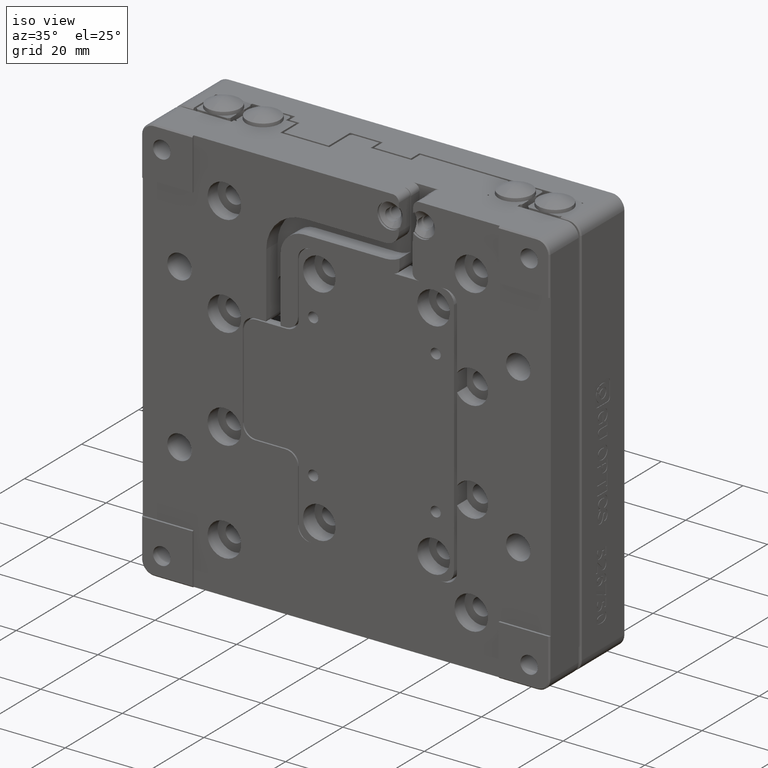
[diagram: clean part render]
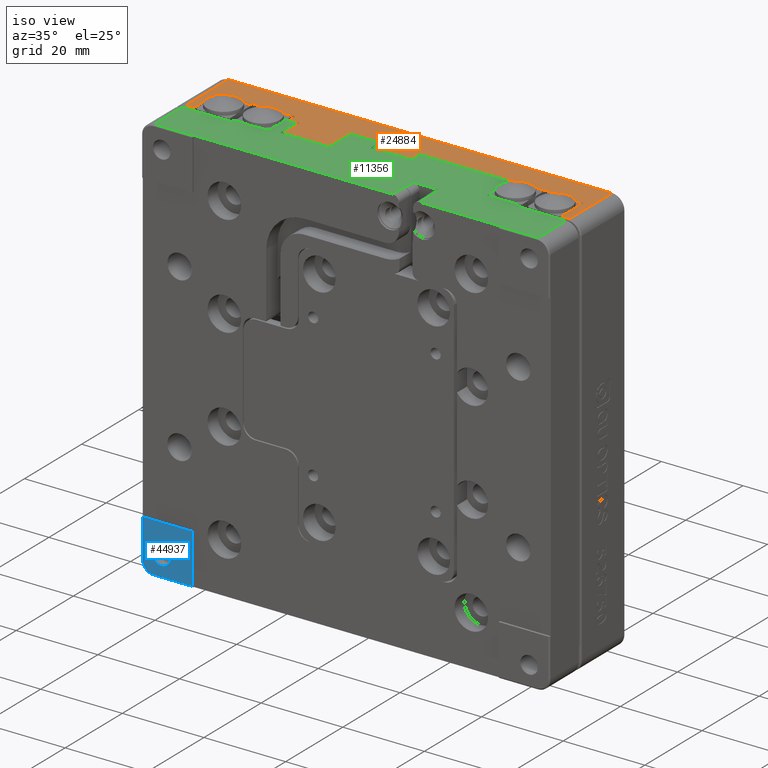
[diagram: same view with three faces highlighted in distinct colors, each labeled with its STEP entity id]
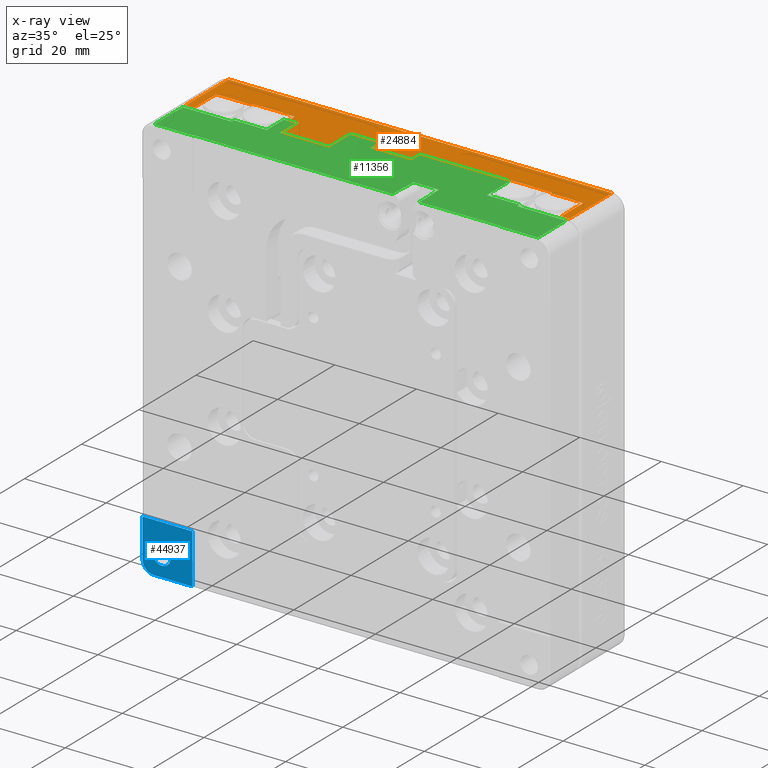
[diagram: x-ray of the same camera — body ghosted, the three highlighted faces saturated]
A machine part, iso view with three faces highlighted in distinct colors.
The next image is the same camera in x-ray (body ghosted, the three faces saturated) — at least one of them is partly hidden behind the body in this view.
Their STEP definitions:

[orange] entity #24884 — the highlighted planar face has unit normal (0, 0, -1).
#21 = EDGE_CURVE ( 'NONE', #41973, #6763, #14478, .T. ) ;
#1104 = VECTOR ( 'NONE', #9554, 1000.000000000000000 ) ;
#2211 = CARTESIAN_POINT ( 'NONE',  ( -26.00000000000000400, 8.249999999999998200, 50.00000000000000000 ) ) ;
#2368 = VECTOR ( 'NONE', #47038, 1000.000000000000000 ) ;
#2709 = EDGE_CURVE ( 'NONE', #3889, #42621, #4008, .T. ) ;
#2779 = EDGE_LOOP ( 'NONE', ( #47043, #3453, #15563, #17596, #35051, #40010, #50641, #11193, #48526, #22409, #39622, #38890, #26853, #7026, #33501, #30886, #23662, #6353, #12034, #21953, #6511, #53862 ) ) ;
#3005 = CARTESIAN_POINT ( 'NONE',  ( -12.50000000000000400, 8.249999999999998200, 50.00000000000000000 ) ) ;
#3222 = EDGE_CURVE ( 'NONE', #39526, #34266, #26660, .T. ) ;
#3453 = ORIENTED_EDGE ( 'NONE', *, *, #48138, .F. ) ;
#3682 = VERTEX_POINT ( 'NONE', #8224 ) ;
#3889 = VERTEX_POINT ( 'NONE', #54286 ) ;
#4008 = LINE ( 'NONE', #40900, #28039 ) ;
#4354 = CARTESIAN_POINT ( 'NONE',  ( -36.50000000000000700, 8.500000000000000000, 50.00000000000000700 ) ) ;
#5271 = CARTESIAN_POINT ( 'NONE',  ( 0.0000000000000000000, 8.500000000000000000, 50.00000000000000000 ) ) ;
#5319 = EDGE_CURVE ( 'NONE', #42621, #3682, #9113, .T. ) ;
#5554 = LINE ( 'NONE', #43356, #38199 ) ;
#5677 = VECTOR ( 'NONE', #52497, 1000.000000000000000 ) ;
#5835 = EDGE_CURVE ( 'NONE', #34266, #26705, #29798, .T. ) ;
#6031 = LINE ( 'NONE', #47899, #28723 ) ;
#6353 = ORIENTED_EDGE ( 'NONE', *, *, #52555, .F. ) ;
#6511 = ORIENTED_EDGE ( 'NONE', *, *, #24999, .F. ) ;
#6708 = EDGE_CURVE ( 'NONE', #17486, #39526, #47670, .T. ) ;
#6760 = CARTESIAN_POINT ( 'NONE',  ( 37.00000000000000000, 9.000000000000001800, 50.00000000000000000 ) ) ;
#6763 = VERTEX_POINT ( 'NONE', #30486 ) ;
#6963 = EDGE_CURVE ( 'NONE', #53427, #17486, #14342, .T. ) ;
#7026 = ORIENTED_EDGE ( 'NONE', *, *, #21, .F. ) ;
#7611 = CARTESIAN_POINT ( 'NONE',  ( 0.0000000000000000000, 0.7999999956783000500, 50.00000000000000000 ) ) ;
#7929 = VERTEX_POINT ( 'NONE', #44696 ) ;
#8068 = CARTESIAN_POINT ( 'NONE',  ( 0.0000000000000000000, 6.000000000000000000, 50.00000000000000000 ) ) ;
#8224 = CARTESIAN_POINT ( 'NONE',  ( -12.50000000000000000, 1.500000000000000000, 50.00000000000000000 ) ) ;
#8502 = CARTESIAN_POINT ( 'NONE',  ( 0.0000000000000000000, 15.70000000486000300, 50.00000000000000000 ) ) ;
#8934 = CARTESIAN_POINT ( 'NONE',  ( 37.00000000000000000, 8.749999999999998200, 50.00000000000000000 ) ) ;
#9113 = LINE ( 'NONE', #3005, #30434 ) ;
#9407 = VECTOR ( 'NONE', #52199, 1000.000000000000000 ) ;
#9548 = DIRECTION ( 'NONE',  ( -1.000000000000000000, 0.0000000000000000000, 0.0000000000000000000 ) ) ;
#9554 = DIRECTION ( 'NONE',  ( -1.000000000000000000, 0.0000000000000000000, 0.0000000000000000000 ) ) ;
#10002 = CARTESIAN_POINT ( 'NONE',  ( 0.0000000000000000000, 9.000000000000001800, 50.00000000000000000 ) ) ;
#10147 = EDGE_CURVE ( 'NONE', #3682, #41973, #54753, .T. ) ;
#10742 = VERTEX_POINT ( 'NONE', #13954 ) ;
#10893 = CARTESIAN_POINT ( 'NONE',  ( 4.499999999999999100, 9.000000000000001800, 50.00000000000000000 ) ) ;
#11193 = ORIENTED_EDGE ( 'NONE', *, *, #14778, .F. ) ;
#12034 = ORIENTED_EDGE ( 'NONE', *, *, #36727, .F. ) ;
#12196 = VERTEX_POINT ( 'NONE', #51866 ) ;
#12353 = DIRECTION ( 'NONE',  ( -1.000000000000000000, 0.0000000000000000000, 0.0000000000000000000 ) ) ;
#13151 = CARTESIAN_POINT ( 'NONE',  ( -36.50000000000000000, 8.749999999999998200, 50.00000000000000000 ) ) ;
#13198 = DIRECTION ( 'NONE',  ( -1.000000000000000000, 0.0000000000000000000, 0.0000000000000000000 ) ) ;
#13205 = EDGE_CURVE ( 'NONE', #12196, #10742, #40543, .T. ) ;
#13954 = CARTESIAN_POINT ( 'NONE',  ( 37.00000000000000000, 8.500000000000000000, 50.00000000000000000 ) ) ;
#14342 = LINE ( 'NONE', #36581, #25704 ) ;
#14478 = LINE ( 'NONE', #24933, #24514 ) ;
#14545 = CARTESIAN_POINT ( 'NONE',  ( 0.0000000000000000000, 0.8000000000000000400, 50.00000000000000000 ) ) ;
#14778 = EDGE_CURVE ( 'NONE', #39390, #16737, #26416, .T. ) ;
#15063 = DIRECTION ( 'NONE',  ( 0.0000000000000000000, 1.000000000000000000, 0.0000000000000000000 ) ) ;
#15269 = VECTOR ( 'NONE', #38822, 1000.000000000000000 ) ;
#15563 = ORIENTED_EDGE ( 'NONE', *, *, #5835, .F. ) ;
#16057 = CARTESIAN_POINT ( 'NONE',  ( 44.99999999999999300, 8.249999999999998200, 50.00000000000000000 ) ) ;
#16069 = DIRECTION ( 'NONE',  ( -1.000000000000000000, 0.0000000000000000000, 0.0000000000000000000 ) ) ;
#16737 = VERTEX_POINT ( 'NONE', #39913 ) ;
#16996 = LINE ( 'NONE', #10002, #5677 ) ;
#17116 = DIRECTION ( 'NONE',  ( -1.000000000000000000, 0.0000000000000000000, 0.0000000000000000000 ) ) ;
#17126 = VECTOR ( 'NONE', #37397, 1000.000000000000000 ) ;
#17486 = VERTEX_POINT ( 'NONE', #38736 ) ;
#17596 = ORIENTED_EDGE ( 'NONE', *, *, #3222, .F. ) ;
#17849 = CARTESIAN_POINT ( 'NONE',  ( -23.49999999999999600, 1.500000000000000000, 50.00000000000000000 ) ) ;
#18149 = CARTESIAN_POINT ( 'NONE',  ( 4.500000000000000900, 6.000000000000000000, 50.00000000000000000 ) ) ;
#18546 = VECTOR ( 'NONE', #18829, 1000.000000000000000 ) ;
#18676 = CARTESIAN_POINT ( 'NONE',  ( -26.00000000000000400, 7.000000000000000000, 50.00000000000000000 ) ) ;
#18829 = DIRECTION ( 'NONE',  ( -1.000000000000000000, 0.0000000000000000000, 0.0000000000000000000 ) ) ;
#20298 = VERTEX_POINT ( 'NONE', #4354 ) ;
#20378 = DIRECTION ( 'NONE',  ( 0.0000000000000000000, 1.000000000000000000, 0.0000000000000000000 ) ) ;
#20428 = EDGE_CURVE ( 'NONE', #7929, #29927, #6031, .T. ) ;
#20519 = VERTEX_POINT ( 'NONE', #18676 ) ;
#21330 = EDGE_CURVE ( 'NONE', #20298, #29927, #25306, .T. ) ;
#21592 = CARTESIAN_POINT ( 'NONE',  ( 0.0000000000000000000, 8.500000000000000000, 50.00000000000000000 ) ) ;
#21953 = ORIENTED_EDGE ( 'NONE', *, *, #38975, .F. ) ;
#22163 = EDGE_CURVE ( 'NONE', #6763, #20519, #37191, .T. ) ;
#22409 = ORIENTED_EDGE ( 'NONE', *, *, #21330, .T. ) ;
#22417 = CARTESIAN_POINT ( 'NONE',  ( 0.0000000000000000000, 1.500000000000000000, 50.00000000000000000 ) ) ;
#23407 = CARTESIAN_POINT ( 'NONE',  ( -45.00000000000000700, 8.249999999999998200, 50.00000000000000000 ) ) ;
#23662 = ORIENTED_EDGE ( 'NONE', *, *, #2709, .F. ) ;
#23714 = CARTESIAN_POINT ( 'NONE',  ( -12.50000000000000200, 9.000000000000001800, 50.00000000000000000 ) ) ;
#23988 = DIRECTION ( 'NONE',  ( -1.000000000000000000, 0.0000000000000000000, 0.0000000000000000000 ) ) ;
#24514 = VECTOR ( 'NONE', #46119, 1000.000000000000000 ) ;
#24884 = ADVANCED_FACE ( 'NONE', ( #32335 ), #34051, .F. ) ;
#24933 = CARTESIAN_POINT ( 'NONE',  ( -23.50000000000000000, 8.249999999999998200, 50.00000000000000000 ) ) ;
#24999 = EDGE_CURVE ( 'NONE', #53249, #28573, #16996, .T. ) ;
#25218 = CARTESIAN_POINT ( 'NONE',  ( -46.99999999298375300, 0.7999999989207889900, 49.99999999891878100 ) ) ;
#25306 = LINE ( 'NONE', #13151, #46588 ) ;
#25704 = VECTOR ( 'NONE', #28216, 1000.000000000000000 ) ;
#26416 = LINE ( 'NONE', #23407, #30391 ) ;
#26660 = LINE ( 'NONE', #51495, #15269 ) ;
#26705 = VERTEX_POINT ( 'NONE', #45158 ) ;
#26853 = ORIENTED_EDGE ( 'NONE', *, *, #22163, .F. ) ;
#28039 = VECTOR ( 'NONE', #23988, 1000.000000000000000 ) ;
#28216 = DIRECTION ( 'NONE',  ( 0.0000000000000000000, 1.000000000000000000, 0.0000000000000000000 ) ) ;
#28556 = DIRECTION ( 'NONE',  ( -0.0000000000000000000, -1.000000000000000000, -0.0000000000000000000 ) ) ;
#28573 = VERTEX_POINT ( 'NONE', #10893 ) ;
#28596 = CARTESIAN_POINT ( 'NONE',  ( 0.0000000000000000000, 7.000000000000000000, 50.00000000000000000 ) ) ;
#28723 = VECTOR ( 'NONE', #9548, 1000.000000000000000 ) ;
#29462 = EDGE_CURVE ( 'NONE', #20519, #7929, #54993, .T. ) ;
#29798 = LINE ( 'NONE', #7611, #17126 ) ;
#29927 = VERTEX_POINT ( 'NONE', #50023 ) ;
#30071 = DIRECTION ( 'NONE',  ( -0.0000000000000000000, -1.000000000000000000, -0.0000000000000000000 ) ) ;
#30391 = VECTOR ( 'NONE', #48875, 1000.000000000000000 ) ;
#30434 = VECTOR ( 'NONE', #28556, 1000.000000000000000 ) ;
#30486 = CARTESIAN_POINT ( 'NONE',  ( -23.49999999999999600, 6.999999999999999100, 50.00000000000000000 ) ) ;
#30505 = CARTESIAN_POINT ( 'NONE',  ( -4.499999999999999100, 6.000000000000000000, 50.00000000000000000 ) ) ;
#30886 = ORIENTED_EDGE ( 'NONE', *, *, #5319, .F. ) ;
#31223 = LINE ( 'NONE', #14545, #18546 ) ;
#31376 = VECTOR ( 'NONE', #34456, 1000.000000000000000 ) ;
#32036 = VERTEX_POINT ( 'NONE', #30505 ) ;
#32335 = FACE_OUTER_BOUND ( 'NONE', #2779, .T. ) ;
#32705 = LINE ( 'NONE', #8934, #31376 ) ;
#33501 = ORIENTED_EDGE ( 'NONE', *, *, #10147, .F. ) ;
#34051 = PLANE ( 'NONE',  #35618 ) ;
#34192 = DIRECTION ( 'NONE',  ( 0.0000000000000000000, 1.000000000000000000, 0.0000000000000000000 ) ) ;
#34266 = VERTEX_POINT ( 'NONE', #35213 ) ;
#34456 = DIRECTION ( 'NONE',  ( 0.0000000000000000000, -1.000000000000000000, 0.0000000000000000000 ) ) ;
#34982 = DIRECTION ( 'NONE',  ( 0.0000000000000000000, 1.000000000000000000, 0.0000000000000000000 ) ) ;
#35051 = ORIENTED_EDGE ( 'NONE', *, *, #6708, .F. ) ;
#35213 = CARTESIAN_POINT ( 'NONE',  ( 47.00000000000000000, 0.7999999997318707500, 49.99999999972791200 ) ) ;
#35618 = AXIS2_PLACEMENT_3D ( 'NONE', #38338, #42613, #17116 ) ;
#36581 = CARTESIAN_POINT ( 'NONE',  ( -46.99999998349000700, 8.249999999999998200, 50.00000000000000000 ) ) ;
#36727 = EDGE_CURVE ( 'NONE', #51454, #32036, #39756, .T. ) ;
#37191 = LINE ( 'NONE', #28596, #47175 ) ;
#37397 = DIRECTION ( 'NONE',  ( -1.000000000000000000, 0.0000000000000000000, 0.0000000000000000000 ) ) ;
#38161 = VECTOR ( 'NONE', #30071, 1000.000000000000000 ) ;
#38199 = VECTOR ( 'NONE', #34982, 1000.000000000000000 ) ;
#38338 = CARTESIAN_POINT ( 'NONE',  ( 48.88000000000000300, 0.5020000000000001100, 50.00000000000000000 ) ) ;
#38736 = CARTESIAN_POINT ( 'NONE',  ( -46.99999999718875200, 15.70000000045562400, 49.99999999954437900 ) ) ;
#38822 = DIRECTION ( 'NONE',  ( -0.0000000000000000000, -1.000000000000000000, -0.0000000000000000000 ) ) ;
#38890 = ORIENTED_EDGE ( 'NONE', *, *, #29462, .F. ) ;
#38925 = CARTESIAN_POINT ( 'NONE',  ( -45.00000000000000000, 8.500000000000000000, 50.00000000000000000 ) ) ;
#38975 = EDGE_CURVE ( 'NONE', #28573, #51454, #49494, .T. ) ;
#39390 = VERTEX_POINT ( 'NONE', #38925 ) ;
#39526 = VERTEX_POINT ( 'NONE', #50134 ) ;
#39622 = ORIENTED_EDGE ( 'NONE', *, *, #20428, .F. ) ;
#39756 = LINE ( 'NONE', #8068, #49736 ) ;
#39913 = CARTESIAN_POINT ( 'NONE',  ( -45.00000000000000700, 0.7999999989197650300, 49.99999999891981200 ) ) ;
#40010 = ORIENTED_EDGE ( 'NONE', *, *, #6963, .F. ) ;
#40543 = LINE ( 'NONE', #21592, #50519 ) ;
#40900 = CARTESIAN_POINT ( 'NONE',  ( 0.0000000000000000000, 9.000000000000001800, 50.00000000000000000 ) ) ;
#40977 = EDGE_CURVE ( 'NONE', #20298, #39390, #46422, .T. ) ;
#41973 = VERTEX_POINT ( 'NONE', #17849 ) ;
#42613 = DIRECTION ( 'NONE',  ( 0.0000000000000000000, 0.0000000000000000000, -1.000000000000000000 ) ) ;
#42621 = VERTEX_POINT ( 'NONE', #23714 ) ;
#43356 = CARTESIAN_POINT ( 'NONE',  ( -4.499999999999997300, 8.249999999999998200, 50.00000000000000000 ) ) ;
#43635 = VECTOR ( 'NONE', #15063, 1000.000000000000000 ) ;
#44696 = CARTESIAN_POINT ( 'NONE',  ( -26.00000000000000400, 9.000000000000001800, 50.00000000000000000 ) ) ;
#45158 = CARTESIAN_POINT ( 'NONE',  ( 45.00000000000000000, 0.7999999978391269000, 50.00000000000000000 ) ) ;
#46119 = DIRECTION ( 'NONE',  ( 0.0000000000000000000, 1.000000000000000000, 0.0000000000000000000 ) ) ;
#46422 = LINE ( 'NONE', #5271, #1104 ) ;
#46588 = VECTOR ( 'NONE', #34192, 1000.000000000000000 ) ;
#46632 = CARTESIAN_POINT ( 'NONE',  ( 4.499999999999997300, 8.249999999999998200, 50.00000000000000000 ) ) ;
#47038 = DIRECTION ( 'NONE',  ( 1.000000000000000000, -0.0000000000000000000, -0.0000000000000000000 ) ) ;
#47043 = ORIENTED_EDGE ( 'NONE', *, *, #13205, .F. ) ;
#47175 = VECTOR ( 'NONE', #16069, 1000.000000000000000 ) ;
#47670 = LINE ( 'NONE', #8502, #2368 ) ;
#47899 = CARTESIAN_POINT ( 'NONE',  ( 0.0000000000000000000, 9.000000000000001800, 50.00000000000000000 ) ) ;
#48138 = EDGE_CURVE ( 'NONE', #26705, #12196, #54583, .T. ) ;
#48464 = EDGE_CURVE ( 'NONE', #16737, #53427, #31223, .T. ) ;
#48526 = ORIENTED_EDGE ( 'NONE', *, *, #40977, .F. ) ;
#48875 = DIRECTION ( 'NONE',  ( -0.0000000000000000000, -1.000000000000000000, -0.0000000000000000000 ) ) ;
#49494 = LINE ( 'NONE', #46632, #38161 ) ;
#49736 = VECTOR ( 'NONE', #12353, 1000.000000000000000 ) ;
#50023 = CARTESIAN_POINT ( 'NONE',  ( -36.49999999999999300, 9.000000000000001800, 50.00000000000000700 ) ) ;
#50134 = CARTESIAN_POINT ( 'NONE',  ( 46.99999998789874700, 15.70000000182249900, 49.99999999878500000 ) ) ;
#50519 = VECTOR ( 'NONE', #13198, 1000.000000000000000 ) ;
#50641 = ORIENTED_EDGE ( 'NONE', *, *, #48464, .F. ) ;
#51454 = VERTEX_POINT ( 'NONE', #18149 ) ;
#51495 = CARTESIAN_POINT ( 'NONE',  ( 46.99999997153000200, 8.249999999999998200, 50.00000000000000000 ) ) ;
#51866 = CARTESIAN_POINT ( 'NONE',  ( 44.99999999999999300, 8.500000000000000000, 50.00000000000000000 ) ) ;
#52199 = DIRECTION ( 'NONE',  ( -1.000000000000000000, 0.0000000000000000000, 0.0000000000000000000 ) ) ;
#52497 = DIRECTION ( 'NONE',  ( -1.000000000000000000, 0.0000000000000000000, 0.0000000000000000000 ) ) ;
#52555 = EDGE_CURVE ( 'NONE', #32036, #3889, #5554, .T. ) ;
#53249 = VERTEX_POINT ( 'NONE', #6760 ) ;
#53258 = VECTOR ( 'NONE', #20378, 1000.000000000000000 ) ;
#53427 = VERTEX_POINT ( 'NONE', #25218 ) ;
#53862 = ORIENTED_EDGE ( 'NONE', *, *, #54205, .T. ) ;
#54205 = EDGE_CURVE ( 'NONE', #53249, #10742, #32705, .T. ) ;
#54286 = CARTESIAN_POINT ( 'NONE',  ( -4.500000000000000900, 9.000000000000001800, 50.00000000000000000 ) ) ;
#54583 = LINE ( 'NONE', #16057, #53258 ) ;
#54753 = LINE ( 'NONE', #22417, #9407 ) ;
#54993 = LINE ( 'NONE', #2211, #43635 ) ;

[blue] entity #44937 — the highlighted planar face has unit normal (0, -1, 0).
#363 = CARTESIAN_POINT ( 'NONE',  ( -46.99999999295749800, -10.50000000146250300, -49.69999999853750000 ) ) ;
#430 = B_SPLINE_CURVE_WITH_KNOTS ( 'NONE', 3,
 ( #37549, #3471, #46114, #20629, #50421, #24929, #54717, #29208, #3674, #33452 ),
 .UNSPECIFIED., .F., .F.,
 ( 4, 2, 2, 2, 4 ),
 ( 0.0000000000000000000, 0.2500000000000000000, 0.5000000000000000000, 0.7500000000000000000, 1.000000000000000000 ),
 .UNSPECIFIED. ) ;
#498 = EDGE_CURVE ( 'NONE', #36043, #38061, #51082, .T. ) ;
#1688 = B_SPLINE_CURVE_WITH_KNOTS ( 'NONE', 3,
 ( #24132, #11415, #15721, #45507, #20021, #49807, #24323, #54098, #28601, #3053 ),
 .UNSPECIFIED., .F., .F.,
 ( 4, 2, 2, 2, 4 ),
 ( 0.0000000000000000000, 0.1250000000000000000, 0.2500000000000000000, 0.3750000000000000000, 0.5000000000000000000 ),
 .UNSPECIFIED. ) ;
#2581 = EDGE_CURVE ( 'NONE', #36297, #38061, #41989, .T. ) ;
#2650 = CARTESIAN_POINT ( 'NONE',  ( -43.67872455205393600, -10.50000000000000200, -46.71928371115609500 ) ) ;
#3053 = CARTESIAN_POINT ( 'NONE',  ( -45.00000000000000700, -10.50000000000000200, -47.14999999999999900 ) ) ;
#3130 = CARTESIAN_POINT ( 'NONE',  ( -49.69999999854999800, -10.50000000000000400, -47.00000002039301700 ) ) ;
#3322 = CARTESIAN_POINT ( 'NONE',  ( -45.00000000000000000, -10.50000000000000200, -42.85000000000000100 ) ) ;
#3471 = CARTESIAN_POINT ( 'NONE',  ( -47.35342917148959400, -10.50000000000000400, -49.69999999999999600 ) ) ;
#3674 = CARTESIAN_POINT ( 'NONE',  ( -49.69999999679674800, -10.50000000000000500, -47.35342919596060100 ) ) ;
#3847 = CARTESIAN_POINT ( 'NONE',  ( -45.00000000000000000, -10.50000000000000200, -42.85000000000000100 ) ) ;
#4031 = CARTESIAN_POINT ( 'NONE',  ( -45.00000000000000000, -10.50000000000000200, -42.85000000000000100 ) ) ;
#4157 = EDGE_CURVE ( 'NONE', #30820, #36297, #30536, .T. ) ;
#4870 = B_SPLINE_CURVE_WITH_KNOTS ( 'NONE', 3,
 ( #19608, #45124, #53718, #28192, #2650, #32455, #6940, #36723, #11211, #41019 ),
 .UNSPECIFIED., .F., .F.,
 ( 4, 2, 2, 2, 4 ),
 ( 0.5000000000000000000, 0.6250000000000000000, 0.7500000000000000000, 0.8750000000000000000, 1.000000000000000000 ),
 .UNSPECIFIED. ) ;
#5056 = EDGE_CURVE ( 'NONE', #43322, #50538, #45065, .T. ) ;
#5512 = VERTEX_POINT ( 'NONE', #363 ) ;
#5713 = ORIENTED_EDGE ( 'NONE', *, *, #42077, .T. ) ;
#6499 = VERTEX_POINT ( 'NONE', #53438 ) ;
#6940 = CARTESIAN_POINT ( 'NONE',  ( -43.12135926503835000, -10.50000000000000200, -46.08278080779742000 ) ) ;
#8118 = CARTESIAN_POINT ( 'NONE',  ( -46.08278080779741300, -10.50000000000000000, -43.12135926503832200 ) ) ;
#9358 = DIRECTION ( 'NONE',  ( -0.0000000000000000000, -0.0000000000000000000, 1.000000000000000000 ) ) ;
#11211 = CARTESIAN_POINT ( 'NONE',  ( -42.85000000000000100, -10.50000000000000200, -45.28143434188408600 ) ) ;
#11415 = CARTESIAN_POINT ( 'NONE',  ( -47.14999999999999900, -10.50000000000000000, -45.28143434188407900 ) ) ;
#11691 = CARTESIAN_POINT ( 'NONE',  ( -42.85000000000000100, -10.50000000000000200, -44.99999999999998600 ) ) ;
#11806 = DIRECTION ( 'NONE',  ( 1.000000000000000000, 0.0000000000000000000, 0.0000000000000000000 ) ) ;
#12407 = CARTESIAN_POINT ( 'NONE',  ( -46.71928371115608100, -10.50000000000000400, -43.67872455205392900 ) ) ;
#14102 = CARTESIAN_POINT ( 'NONE',  ( -42.25000000000000700, -10.50000000585000000, -49.69999999415000500 ) ) ;
#15721 = CARTESIAN_POINT ( 'NONE',  ( -47.09404125483688100, -10.50000000000000400, -45.56275795137245400 ) ) ;
#15972 = CARTESIAN_POINT ( 'NONE',  ( -42.90595874516313300, -10.50000000000000400, -44.43724204862755300 ) ) ;
#16509 = CARTESIAN_POINT ( 'NONE',  ( -45.56275795137245400, -10.50000000000000400, -42.90595874516312600 ) ) ;
#16681 = CARTESIAN_POINT ( 'NONE',  ( -47.09404125483687400, -10.50000000000000400, -44.43724204862753200 ) ) ;
#18407 = DIRECTION ( 'NONE',  ( 1.000000000000000000, 0.0000000000000000000, 0.0000000000000000000 ) ) ;
#18883 = EDGE_LOOP ( 'NONE', ( #52044, #52543, #27895, #28325 ) ) ;
#19203 = VECTOR ( 'NONE', #9358, 1000.000000000000000 ) ;
#19354 = VECTOR ( 'NONE', #39423, 1000.000000000000000 ) ;
#19608 = CARTESIAN_POINT ( 'NONE',  ( -45.00000000000000700, -10.50000000000000200, -47.14999999999999900 ) ) ;
#20021 = CARTESIAN_POINT ( 'NONE',  ( -46.71928371115609500, -10.50000000000000200, -46.32127544794607100 ) ) ;
#20277 = CARTESIAN_POINT ( 'NONE',  ( -43.28071628884390500, -10.50000000000000200, -43.67872455205393600 ) ) ;
#20629 = CARTESIAN_POINT ( 'NONE',  ( -48.35977123977180300, -10.50000000000000000, -49.35922325241789100 ) ) ;
#20990 = CARTESIAN_POINT ( 'NONE',  ( -47.14999999999999900, -10.50000000000000200, -45.00000000000000000 ) ) ;
#21368 = FACE_BOUND ( 'NONE', #18883, .T. ) ;
#21744 = EDGE_CURVE ( 'NONE', #5512, #36043, #430, .T. ) ;
#24132 = CARTESIAN_POINT ( 'NONE',  ( -47.14999999999999900, -10.50000000000000200, -45.00000000000000000 ) ) ;
#24323 = CARTESIAN_POINT ( 'NONE',  ( -46.08278080779743400, -10.50000000000000200, -46.87864073496165700 ) ) ;
#24594 = CARTESIAN_POINT ( 'NONE',  ( -43.91721919220255900, -10.50000000000000200, -43.12135926503835000 ) ) ;
#24929 = CARTESIAN_POINT ( 'NONE',  ( -49.15910046551383100, -10.50000000000000700, -48.65927615515855100 ) ) ;
#25645 = EDGE_CURVE ( 'NONE', #40671, #6499, #4870, .T. ) ;
#26349 = CARTESIAN_POINT ( 'NONE',  ( -37.50000000000000000, -10.50000000000000000, -43.75000000000000000 ) ) ;
#27895 = ORIENTED_EDGE ( 'NONE', *, *, #40149, .F. ) ;
#27959 = ORIENTED_EDGE ( 'NONE', *, *, #498, .F. ) ;
#28192 = CARTESIAN_POINT ( 'NONE',  ( -43.91721919220256600, -10.50000000000000000, -46.87864073496165700 ) ) ;
#28325 = ORIENTED_EDGE ( 'NONE', *, *, #25645, .F. ) ;
#28337 = VECTOR ( 'NONE', #18407, 1000.000000000000000 ) ;
#28601 = CARTESIAN_POINT ( 'NONE',  ( -45.28143434188409300, -10.50000000000000200, -47.15000000000000600 ) ) ;
#28787 = PLANE ( 'NONE',  #31447 ) ;
#28860 = CARTESIAN_POINT ( 'NONE',  ( -44.71856565811591400, -10.50000000000000200, -42.85000000000000100 ) ) ;
#29208 = CARTESIAN_POINT ( 'NONE',  ( -49.62972622142015000, -10.50000000000000700, -47.70671930752963900 ) ) ;
#29374 = CARTESIAN_POINT ( 'NONE',  ( -45.28143434188409300, -10.50000000000000000, -42.85000000000000100 ) ) ;
#30536 = LINE ( 'NONE', #26349, #19203 ) ;
#30820 = VERTEX_POINT ( 'NONE', #39797 ) ;
#31044 = EDGE_CURVE ( 'NONE', #50538, #40671, #1688, .T. ) ;
#31447 = AXIS2_PLACEMENT_3D ( 'NONE', #33051, #37315, #11806 ) ;
#32455 = CARTESIAN_POINT ( 'NONE',  ( -43.28071628884392700, -10.50000000000000400, -46.32127544794607100 ) ) ;
#33051 = CARTESIAN_POINT ( 'NONE',  ( -51.68799999999998800, -10.50000000000000000, -51.68799999999998800 ) ) ;
#33452 = CARTESIAN_POINT ( 'NONE',  ( -49.69999999854999800, -10.50000000000000400, -47.00000002039301700 ) ) ;
#34084 = CARTESIAN_POINT ( 'NONE',  ( -49.69999999710000800, -10.50000000000000000, -37.50000000000000700 ) ) ;
#36043 = VERTEX_POINT ( 'NONE', #3130 ) ;
#36297 = VERTEX_POINT ( 'NONE', #38674 ) ;
#36723 = CARTESIAN_POINT ( 'NONE',  ( -42.90595874516311900, -10.50000000000000400, -45.56275795137245400 ) ) ;
#37216 = CARTESIAN_POINT ( 'NONE',  ( -42.84999999999999400, -10.50000000000000000, -44.71856565811592800 ) ) ;
#37315 = DIRECTION ( 'NONE',  ( 0.0000000000000000000, -1.000000000000000000, 0.0000000000000000000 ) ) ;
#37543 = ORIENTED_EDGE ( 'NONE', *, *, #4157, .T. ) ;
#37549 = CARTESIAN_POINT ( 'NONE',  ( -46.99999999295749800, -10.50000000146250300, -49.69999999853750000 ) ) ;
#37914 = CARTESIAN_POINT ( 'NONE',  ( -46.32127544794606400, -10.50000000000000200, -43.28071628884390500 ) ) ;
#38061 = VERTEX_POINT ( 'NONE', #34084 ) ;
#38674 = CARTESIAN_POINT ( 'NONE',  ( -37.50000000000000000, -10.50000000000000000, -37.49999999999999300 ) ) ;
#39423 = DIRECTION ( 'NONE',  ( -1.000000000000000000, -0.0000000000000000000, -0.0000000000000000000 ) ) ;
#39768 = VECTOR ( 'NONE', #45273, 1000.000000000000000 ) ;
#39797 = CARTESIAN_POINT ( 'NONE',  ( -37.50000000000000000, -10.50000000390000000, -49.69999999415000500 ) ) ;
#40149 = EDGE_CURVE ( 'NONE', #6499, #43322, #43336, .T. ) ;
#40671 = VERTEX_POINT ( 'NONE', #41244 ) ;
#40974 = ORIENTED_EDGE ( 'NONE', *, *, #21744, .F. ) ;
#41019 = CARTESIAN_POINT ( 'NONE',  ( -42.85000000000000100, -10.50000000000000200, -44.99999999999998600 ) ) ;
#41244 = CARTESIAN_POINT ( 'NONE',  ( -45.00000000000000700, -10.50000000000000200, -47.14999999999999900 ) ) ;
#41989 = LINE ( 'NONE', #52087, #19354 ) ;
#42077 = EDGE_CURVE ( 'NONE', #5512, #30820, #49629, .T. ) ;
#42198 = CARTESIAN_POINT ( 'NONE',  ( -46.87864073496165700, -10.50000000000000200, -43.91721919220255900 ) ) ;
#43322 = VERTEX_POINT ( 'NONE', #4031 ) ;
#43336 = B_SPLINE_CURVE_WITH_KNOTS ( 'NONE', 3,
 ( #11691, #37216, #15972, #45787, #20277, #50074, #24594, #54377, #28860, #3322 ),
 .UNSPECIFIED., .F., .F.,
 ( 4, 2, 2, 2, 4 ),
 ( 0.0000000000000000000, 0.1250000000000000000, 0.2500000000000000000, 0.3750000000000000000, 0.5000000000000000000 ),
 .UNSPECIFIED. ) ;
#44937 = ADVANCED_FACE ( 'NONE', ( #21368, #54039 ), #28787, .T. ) ;
#45039 = ORIENTED_EDGE ( 'NONE', *, *, #2581, .T. ) ;
#45065 = B_SPLINE_CURVE_WITH_KNOTS ( 'NONE', 3,
 ( #3847, #29374, #16509, #8118, #37914, #12407, #42198, #16681, #46488, #20990 ),
 .UNSPECIFIED., .F., .F.,
 ( 4, 2, 2, 2, 4 ),
 ( 0.5000000000000000000, 0.6250000000000000000, 0.7500000000000000000, 0.8750000000000000000, 1.000000000000000000 ),
 .UNSPECIFIED. ) ;
#45097 = CARTESIAN_POINT ( 'NONE',  ( -49.69999999420000600, -10.50000000000000000, 0.0000000000000000000 ) ) ;
#45124 = CARTESIAN_POINT ( 'NONE',  ( -44.71856565811592800, -10.50000000000000000, -47.14999999999998400 ) ) ;
#45273 = DIRECTION ( 'NONE',  ( 0.0000000000000000000, 0.0000000000000000000, 1.000000000000000000 ) ) ;
#45507 = CARTESIAN_POINT ( 'NONE',  ( -46.87864073496165700, -10.50000000000000000, -46.08278080779742000 ) ) ;
#45787 = CARTESIAN_POINT ( 'NONE',  ( -43.12135926503832900, -10.50000000000000000, -43.91721919220256600 ) ) ;
#46114 = CARTESIAN_POINT ( 'NONE',  ( -47.70671928369555600, -10.50000000000000400, -49.62972622782537300 ) ) ;
#46488 = CARTESIAN_POINT ( 'NONE',  ( -47.15000000000000600, -10.50000000000000200, -44.71856565811591400 ) ) ;
#49629 = LINE ( 'NONE', #14102, #28337 ) ;
#49807 = CARTESIAN_POINT ( 'NONE',  ( -46.32127544794606400, -10.50000000000000400, -46.71928371115608100 ) ) ;
#50074 = CARTESIAN_POINT ( 'NONE',  ( -43.67872455205392900, -10.50000000000000400, -43.28071628884392700 ) ) ;
#50421 = CARTESIAN_POINT ( 'NONE',  ( -48.65927613558991300, -10.50000000000000500, -49.15910048055241800 ) ) ;
#50538 = VERTEX_POINT ( 'NONE', #51807 ) ;
#51082 = LINE ( 'NONE', #45097, #39768 ) ;
#51807 = CARTESIAN_POINT ( 'NONE',  ( -47.14999999999999900, -10.50000000000000200, -45.00000000000000000 ) ) ;
#52044 = ORIENTED_EDGE ( 'NONE', *, *, #31044, .F. ) ;
#52087 = CARTESIAN_POINT ( 'NONE',  ( -43.75000000000000000, -10.50000000000000000, -37.50000000000000000 ) ) ;
#52543 = ORIENTED_EDGE ( 'NONE', *, *, #5056, .F. ) ;
#53438 = CARTESIAN_POINT ( 'NONE',  ( -42.85000000000000100, -10.50000000000000200, -44.99999999999998600 ) ) ;
#53718 = CARTESIAN_POINT ( 'NONE',  ( -44.43724204862755300, -10.50000000000000400, -47.09404125483687400 ) ) ;
#54039 = FACE_OUTER_BOUND ( 'NONE', #54773, .T. ) ;
#54098 = CARTESIAN_POINT ( 'NONE',  ( -45.56275795137245400, -10.50000000000000400, -47.09404125483687400 ) ) ;
#54377 = CARTESIAN_POINT ( 'NONE',  ( -44.43724204862753200, -10.50000000000000400, -42.90595874516311900 ) ) ;
#54717 = CARTESIAN_POINT ( 'NONE',  ( -49.35922324009384000, -10.50000000000000500, -48.35977126115423600 ) ) ;
#54773 = EDGE_LOOP ( 'NONE', ( #45039, #27959, #40974, #5713, #37543 ) ) ;

[green] entity #11356 — the highlighted planar face has unit normal (0, 0, 1).
#127 = LINE ( 'NONE', #51236, #32771 ) ;
#553 = CARTESIAN_POINT ( 'NONE',  ( 27.00000000000017100, 8.000000000000167000, 49.99999999999999300 ) ) ;
#899 = EDGE_CURVE ( 'NONE', #16049, #13241, #26441, .T. ) ;
#1280 = CARTESIAN_POINT ( 'NONE',  ( 11.39603971668496200, -5.999999999999999100, 49.99635791898223400 ) ) ;
#1509 = VERTEX_POINT ( 'NONE', #44422 ) ;
#1536 = CARTESIAN_POINT ( 'NONE',  ( -37.50000000000000700, -10.00000000000000000, 50.00000000000000700 ) ) ;
#2053 = DIRECTION ( 'NONE',  ( 1.000000000000000000, 0.0000000000000000000, 0.0000000000000000000 ) ) ;
#2209 = ORIENTED_EDGE ( 'NONE', *, *, #40506, .F. ) ;
#2395 = VECTOR ( 'NONE', #18429, 1000.000000000000000 ) ;
#2491 = CARTESIAN_POINT ( 'NONE',  ( 26.99999999999999600, 4.249999999999998200, 49.99999999999998600 ) ) ;
#2565 = VECTOR ( 'NONE', #6236, 1000.000000000000000 ) ;
#3041 = DIRECTION ( 'NONE',  ( -1.000000000000000000, -0.0000000000000000000, -0.0000000000000000000 ) ) ;
#3086 = ORIENTED_EDGE ( 'NONE', *, *, #32607, .F. ) ;
#3102 = CARTESIAN_POINT ( 'NONE',  ( 46.99999998299000500, -0.2999999989170589700, 49.99999999891731100 ) ) ;
#3139 = VERTEX_POINT ( 'NONE', #12390 ) ;
#3312 = VERTEX_POINT ( 'NONE', #5470 ) ;
#3701 = B_SPLINE_CURVE_WITH_KNOTS ( 'NONE', 3,
 ( #33415, #54856, #3816, #33611 ),
 .UNSPECIFIED., .F., .F.,
 ( 4, 4 ),
 ( 0.0000000000000000000, 1.000000000000000000 ),
 .UNSPECIFIED. ) ;
#3768 = LINE ( 'NONE', #20179, #47735 ) ;
#3816 = CARTESIAN_POINT ( 'NONE',  ( 17.60123104058920200, -4.000000000000000900, 50.00000000000000000 ) ) ;
#4245 = DIRECTION ( 'NONE',  ( 0.0000000000000000000, 1.000000000000000000, 0.0000000000000000000 ) ) ;
#4501 = CARTESIAN_POINT ( 'NONE',  ( 35.00000000000002100, 0.4999999999999995600, 50.00000000000000000 ) ) ;
#4509 = ORIENTED_EDGE ( 'NONE', *, *, #19283, .F. ) ;
#4809 = CARTESIAN_POINT ( 'NONE',  ( -46.99999997253624400, -10.20000000071166300, 49.99999999989833600 ) ) ;
#4885 = VERTEX_POINT ( 'NONE', #53437 ) ;
#4902 = CARTESIAN_POINT ( 'NONE',  ( 37.50000000000001400, -0.8499999999999974200, 50.00000000000000000 ) ) ;
#5309 = EDGE_CURVE ( 'NONE', #43689, #3312, #43080, .T. ) ;
#5470 = CARTESIAN_POINT ( 'NONE',  ( -12.00000000000022400, 8.000000000000225600, 50.00000000000000700 ) ) ;
#5572 = CARTESIAN_POINT ( 'NONE',  ( 11.34733556511116200, -5.999999999999998200, 49.99762957515039800 ) ) ;
#5787 = VECTOR ( 'NONE', #38653, 1000.000000000000000 ) ;
#5808 = ORIENTED_EDGE ( 'NONE', *, *, #50190, .T. ) ;
#6236 = DIRECTION ( 'NONE',  ( 1.000000000000000000, 0.0000000000000000000, 0.0000000000000000000 ) ) ;
#6336 = CARTESIAN_POINT ( 'NONE',  ( -4.999999999999996400, 5.500000000000000000, 50.00000000000000000 ) ) ;
#6864 = VERTEX_POINT ( 'NONE', #40138 ) ;
#6968 = DIRECTION ( 'NONE',  ( 1.000000000000000000, 0.0000000000000000000, 0.0000000000000000000 ) ) ;
#6978 = DIRECTION ( 'NONE',  ( 1.000000000000000000, 0.0000000000000000000, 0.0000000000000000000 ) ) ;
#7118 = DIRECTION ( 'NONE',  ( -0.7071067811884557100, -0.7071067811846394300, 0.0000000000000000000 ) ) ;
#7306 = CARTESIAN_POINT ( 'NONE',  ( 35.00000000000002100, -0.3000000000000004900, 50.00000000000000700 ) ) ;
#7696 = DIRECTION ( 'NONE',  ( -0.0000000000000000000, -1.000000000000000000, -0.0000000000000000000 ) ) ;
#7923 = VERTEX_POINT ( 'NONE', #40443 ) ;
#7992 = ORIENTED_EDGE ( 'NONE', *, *, #50685, .F. ) ;
#8056 = CARTESIAN_POINT ( 'NONE',  ( -31.00000000000000000, 0.5000000000000000000, 49.99999999999998600 ) ) ;
#8329 = DIRECTION ( 'NONE',  ( -0.0000000000000000000, -1.000000000000000000, -0.0000000000000000000 ) ) ;
#8589 = DIRECTION ( 'NONE',  ( 0.0000000000000000000, 1.000000000000000000, 0.0000000000000000000 ) ) ;
#9094 = CARTESIAN_POINT ( 'NONE',  ( -46.99999997183000000, -0.8499999999999974200, 50.00000000000000000 ) ) ;
#9104 = CARTESIAN_POINT ( 'NONE',  ( -35.00000000000000000, -0.8499999999999974200, 50.00000000000000000 ) ) ;
#9449 = VERTEX_POINT ( 'NONE', #1536 ) ;
#9516 = ORIENTED_EDGE ( 'NONE', *, *, #21959, .F. ) ;
#9702 = VECTOR ( 'NONE', #6978, 1000.000000000000000 ) ;
#9712 = LINE ( 'NONE', #4902, #19707 ) ;
#9864 = CARTESIAN_POINT ( 'NONE',  ( 11.25000000000000200, -5.999999999999999100, 50.00000000000000700 ) ) ;
#9901 = LINE ( 'NONE', #49533, #19909 ) ;
#10061 = VERTEX_POINT ( 'NONE', #51465 ) ;
#10124 = VERTEX_POINT ( 'NONE', #22211 ) ;
#10454 = VECTOR ( 'NONE', #3041, 1000.000000000000000 ) ;
#10671 = VECTOR ( 'NONE', #22769, 1000.000000000000000 ) ;
#10857 = CARTESIAN_POINT ( 'NONE',  ( 0.0000000000000000000, -10.20000000433000100, 49.99999999999999300 ) ) ;
#11041 = DIRECTION ( 'NONE',  ( 0.0000000000000000000, 1.000000000000000000, 0.0000000000000000000 ) ) ;
#11046 = CARTESIAN_POINT ( 'NONE',  ( 17.70133218105692000, -5.999999999999998200, 50.00000000000000000 ) ) ;
#11058 = PLANE ( 'NONE',  #42092 ) ;
#11201 = DIRECTION ( 'NONE',  ( -0.0000000000000000000, -1.000000000000000000, -0.0000000000000000000 ) ) ;
#11356 = ADVANCED_FACE ( 'NONE', ( #27995 ), #11058, .T. ) ;
#11495 = EDGE_CURVE ( 'NONE', #52353, #10061, #22031, .T. ) ;
#11626 = CARTESIAN_POINT ( 'NONE',  ( 11.40000000000000200, -3.000000000000001300, 50.00000000000000000 ) ) ;
#11945 = ORIENTED_EDGE ( 'NONE', *, *, #28940, .F. ) ;
#12275 = CARTESIAN_POINT ( 'NONE',  ( 4.999999999999999100, 8.499999999999998200, 49.99999999999999300 ) ) ;
#12390 = CARTESIAN_POINT ( 'NONE',  ( 17.60396028331503600, -6.000000000000000900, 49.99635791898225500 ) ) ;
#12397 = CARTESIAN_POINT ( 'NONE',  ( 0.0000000000000000000, -0.3000000000000007700, 50.00000000000000000 ) ) ;
#12496 = B_SPLINE_CURVE_WITH_KNOTS ( 'NONE', 3,
 ( #1280, #5572, #35379, #9864 ),
 .UNSPECIFIED., .F., .F.,
 ( 4, 4 ),
 ( 0.0000000000000000000, 1.000000000000000000 ),
 .UNSPECIFIED. ) ;
#12750 = VERTEX_POINT ( 'NONE', #43589 ) ;
#12876 = EDGE_CURVE ( 'NONE', #31659, #54771, #9901, .T. ) ;
#12904 = LINE ( 'NONE', #29322, #21584 ) ;
#13033 = VECTOR ( 'NONE', #11041, 1000.000000000000000 ) ;
#13241 = VERTEX_POINT ( 'NONE', #4809 ) ;
#13468 = ORIENTED_EDGE ( 'NONE', *, *, #44699, .T. ) ;
#13660 = ORIENTED_EDGE ( 'NONE', *, *, #12876, .F. ) ;
#13811 = EDGE_CURVE ( 'NONE', #46782, #26379, #13816, .T. ) ;
#13816 = LINE ( 'NONE', #12397, #45130 ) ;
#14278 = EDGE_CURVE ( 'NONE', #50466, #46782, #3768, .T. ) ;
#14660 = LINE ( 'NONE', #27257, #15987 ) ;
#14827 = VERTEX_POINT ( 'NONE', #15166 ) ;
#14861 = EDGE_CURVE ( 'NONE', #6864, #41268, #21043, .T. ) ;
#14890 = B_SPLINE_CURVE_WITH_KNOTS ( 'NONE', 3,
 ( #51598, #38743, #26120, #553 ),
 .UNSPECIFIED., .F., .F.,
 ( 4, 4 ),
 ( 0.0000000000000000000, 1.000000000000000000 ),
 .UNSPECIFIED. ) ;
#15166 = CARTESIAN_POINT ( 'NONE',  ( -35.00000000000000000, -0.3000000000000000400, 50.00000000000000000 ) ) ;
#15368 = CARTESIAN_POINT ( 'NONE',  ( 37.50000000000000700, -10.20000000288666600, 49.99999999999999300 ) ) ;
#15668 = CARTESIAN_POINT ( 'NONE',  ( -11.75000000000000200, 8.250000000000000000, 49.99999999999999300 ) ) ;
#15782 = EDGE_CURVE ( 'NONE', #46326, #10124, #12496, .T. ) ;
#15987 = VECTOR ( 'NONE', #52729, 1000.000000000000000 ) ;
#16049 = VERTEX_POINT ( 'NONE', #50792 ) ;
#16145 = CARTESIAN_POINT ( 'NONE',  ( 46.99999998380000900, -0.8499999999999974200, 50.00000000000000000 ) ) ;
#16209 = CARTESIAN_POINT ( 'NONE',  ( -24.00000000000000000, 6.500000000000000000, 50.00000000000000000 ) ) ;
#16824 = ORIENTED_EDGE ( 'NONE', *, *, #55080, .F. ) ;
#17066 = ORIENTED_EDGE ( 'NONE', *, *, #17921, .F. ) ;
#17114 = LINE ( 'NONE', #42740, #5787 ) ;
#17185 = LINE ( 'NONE', #53704, #38499 ) ;
#17921 = EDGE_CURVE ( 'NONE', #26379, #12750, #30954, .T. ) ;
#18212 = EDGE_LOOP ( 'NONE', ( #9516, #28970, #40553, #19183, #36066, #51056, #28935, #30816, #54087, #7992, #47377, #34444, #4509, #13468, #32893, #23202, #33122, #31050, #45017, #34195, #2209, #40803, #11945, #40042, #17066, #21153, #38754, #36848, #5808, #3086, #13660, #26345, #16824, #52248 ) ) ;
#18400 = B_SPLINE_CURVE_WITH_KNOTS ( 'NONE', 3,
 ( #43627, #30799, #52204, #26717 ),
 .UNSPECIFIED., .F., .F.,
 ( 4, 4 ),
 ( 0.0000000000000000000, 1.000000000000000000 ),
 .UNSPECIFIED. ) ;
#18429 = DIRECTION ( 'NONE',  ( -1.000000000000000000, -0.0000000000000000000, -0.0000000000000000000 ) ) ;
#18563 = CARTESIAN_POINT ( 'NONE',  ( 17.75000000000002100, -0.8499999999999974200, 50.00000000000000000 ) ) ;
#18940 = CARTESIAN_POINT ( 'NONE',  ( 37.50000000000000000, -10.00000000000000000, 50.00000000000000700 ) ) ;
#19183 = ORIENTED_EDGE ( 'NONE', *, *, #31163, .T. ) ;
#19283 = EDGE_CURVE ( 'NONE', #9449, #16049, #21475, .T. ) ;
#19347 = LINE ( 'NONE', #48263, #10671 ) ;
#19621 = CARTESIAN_POINT ( 'NONE',  ( 17.60396028331503600, -6.000000000000000900, 49.99635791898225500 ) ) ;
#19707 = VECTOR ( 'NONE', #30458, 1000.000000000000000 ) ;
#19909 = VECTOR ( 'NONE', #32601, 1000.000000000000000 ) ;
#20179 = CARTESIAN_POINT ( 'NONE',  ( 35.00000000000002100, -0.8499999999999974200, 50.00000000000000000 ) ) ;
#20473 = DIRECTION ( 'NONE',  ( -0.0000000000000000000, -1.000000000000000000, -0.0000000000000000000 ) ) ;
#21043 = LINE ( 'NONE', #45161, #9702 ) ;
#21153 = ORIENTED_EDGE ( 'NONE', *, *, #13811, .F. ) ;
#21259 = EDGE_CURVE ( 'NONE', #10124, #53556, #29308, .T. ) ;
#21475 = LINE ( 'NONE', #48593, #42802 ) ;
#21584 = VECTOR ( 'NONE', #42146, 1000.000000000000000 ) ;
#21732 = LINE ( 'NONE', #18563, #45716 ) ;
#21775 = LINE ( 'NONE', #10857, #54434 ) ;
#21959 = EDGE_CURVE ( 'NONE', #43689, #1509, #25260, .T. ) ;
#22031 = LINE ( 'NONE', #8056, #54706 ) ;
#22211 = CARTESIAN_POINT ( 'NONE',  ( 11.25000000000000200, -5.999999999999999100, 50.00000000000000700 ) ) ;
#22769 = DIRECTION ( 'NONE',  ( 1.000000000000000000, 0.0000000000000000000, 0.0000000000000000000 ) ) ;
#23115 = DIRECTION ( 'NONE',  ( -0.0000000000000000000, -1.000000000000000000, -0.0000000000000000000 ) ) ;
#23202 = ORIENTED_EDGE ( 'NONE', *, *, #15782, .F. ) ;
#23228 = EDGE_CURVE ( 'NONE', #6864, #52353, #17114, .T. ) ;
#23397 = EDGE_CURVE ( 'NONE', #12750, #35038, #21775, .T. ) ;
#23589 = CARTESIAN_POINT ( 'NONE',  ( -11.99999999999999800, 1.000000000000000000, 49.99999999999998600 ) ) ;
#23943 = CARTESIAN_POINT ( 'NONE',  ( -48.88000000000000300, -10.57399999999999800, 50.00000000000000000 ) ) ;
#24089 = EDGE_CURVE ( 'NONE', #33151, #3139, #47173, .T. ) ;
#24424 = VECTOR ( 'NONE', #4245, 1000.000000000000000 ) ;
#24471 = VECTOR ( 'NONE', #30320, 1000.000000000000000 ) ;
#24977 = CARTESIAN_POINT ( 'NONE',  ( -27.00000000000000400, 0.5000000000000000000, 49.99999999999998600 ) ) ;
#25093 = CARTESIAN_POINT ( 'NONE',  ( 0.0000000000000000000, 5.499999999999999100, 50.00000000000000000 ) ) ;
#25115 = VECTOR ( 'NONE', #2053, 1000.000000000000000 ) ;
#25260 = LINE ( 'NONE', #48682, #2565 ) ;
#25965 = EDGE_CURVE ( 'NONE', #52951, #41268, #14660, .T. ) ;
#26120 = CARTESIAN_POINT ( 'NONE',  ( 26.83333333333356000, 8.166666666666889900, 50.00000000000000000 ) ) ;
#26345 = ORIENTED_EDGE ( 'NONE', *, *, #35418, .F. ) ;
#26379 = VERTEX_POINT ( 'NONE', #3102 ) ;
#26441 = LINE ( 'NONE', #43924, #2395 ) ;
#26620 = CARTESIAN_POINT ( 'NONE',  ( 27.00000000000017100, 8.000000000000167000, 49.99999999999999300 ) ) ;
#26629 = DIRECTION ( 'NONE',  ( -1.000000000000000000, 0.0000000000000000000, 0.0000000000000000000 ) ) ;
#26717 = CARTESIAN_POINT ( 'NONE',  ( 11.39603971668496200, -5.999999999999999100, 49.99635791898223400 ) ) ;
#27257 = CARTESIAN_POINT ( 'NONE',  ( -24.00000000000000000, 4.750000000000000000, 49.99999999999998600 ) ) ;
#27910 = VECTOR ( 'NONE', #46625, 1000.000000000000000 ) ;
#27995 = FACE_OUTER_BOUND ( 'NONE', #18212, .T. ) ;
#28162 = EDGE_CURVE ( 'NONE', #37750, #51390, #54458, .T. ) ;
#28460 = VECTOR ( 'NONE', #26629, 1000.000000000000000 ) ;
#28589 = CARTESIAN_POINT ( 'NONE',  ( 0.0000000000000000000, -3.000000000000001300, 50.00000000000000000 ) ) ;
#28798 = CARTESIAN_POINT ( 'NONE',  ( 11.39603971668496200, -5.999999999999999100, 49.99635791898223400 ) ) ;
#28935 = ORIENTED_EDGE ( 'NONE', *, *, #23228, .T. ) ;
#28940 = EDGE_CURVE ( 'NONE', #35038, #51210, #9712, .T. ) ;
#28970 = ORIENTED_EDGE ( 'NONE', *, *, #5309, .T. ) ;
#29308 = LINE ( 'NONE', #55099, #37929 ) ;
#29322 = CARTESIAN_POINT ( 'NONE',  ( -18.00000000000000000, 1.000000000000000000, 49.99999999999998600 ) ) ;
#29906 = VERTEX_POINT ( 'NONE', #37169 ) ;
#30320 = DIRECTION ( 'NONE',  ( 0.0000000000000000000, 1.000000000000000000, 0.0000000000000000000 ) ) ;
#30458 = DIRECTION ( 'NONE',  ( 0.0000000000000000000, 1.000000000000000000, 0.0000000000000000000 ) ) ;
#30799 = CARTESIAN_POINT ( 'NONE',  ( 11.39876895941079700, -4.000000000000000900, 50.00000000000000000 ) ) ;
#30816 = ORIENTED_EDGE ( 'NONE', *, *, #11495, .T. ) ;
#30954 = LINE ( 'NONE', #16145, #50915 ) ;
#31050 = ORIENTED_EDGE ( 'NONE', *, *, #28162, .F. ) ;
#31072 = CARTESIAN_POINT ( 'NONE',  ( 26.49999999999932100, 8.499999999999325000, 49.99999999999999300 ) ) ;
#31163 = EDGE_CURVE ( 'NONE', #32238, #52951, #12904, .T. ) ;
#31659 = VERTEX_POINT ( 'NONE', #12275 ) ;
#31872 = VERTEX_POINT ( 'NONE', #37026 ) ;
#32238 = VERTEX_POINT ( 'NONE', #23589 ) ;
#32485 = DIRECTION ( 'NONE',  ( 0.0000000000000000000, 0.0000000000000000000, 1.000000000000000000 ) ) ;
#32601 = DIRECTION ( 'NONE',  ( 1.000000000000000000, 0.0000000000000000000, 0.0000000000000000000 ) ) ;
#32607 = EDGE_CURVE ( 'NONE', #54771, #40450, #14890, .T. ) ;
#32771 = VECTOR ( 'NONE', #8589, 1000.000000000000000 ) ;
#32893 = ORIENTED_EDGE ( 'NONE', *, *, #21259, .F. ) ;
#33122 = ORIENTED_EDGE ( 'NONE', *, *, #42433, .F. ) ;
#33151 = VERTEX_POINT ( 'NONE', #38111 ) ;
#33415 = CARTESIAN_POINT ( 'NONE',  ( 17.60396028331503600, -6.000000000000000900, 49.99635791898225500 ) ) ;
#33611 = CARTESIAN_POINT ( 'NONE',  ( 17.59999999999999800, -3.000000000000001300, 50.00000000000000000 ) ) ;
#34195 = ORIENTED_EDGE ( 'NONE', *, *, #24089, .F. ) ;
#34444 = ORIENTED_EDGE ( 'NONE', *, *, #899, .F. ) ;
#35038 = VERTEX_POINT ( 'NONE', #15368 ) ;
#35375 = EDGE_CURVE ( 'NONE', #3139, #37750, #3701, .T. ) ;
#35379 = CARTESIAN_POINT ( 'NONE',  ( 11.29866781894308000, -5.999999999999998200, 50.00000000000000000 ) ) ;
#35418 = EDGE_CURVE ( 'NONE', #4885, #31659, #53240, .T. ) ;
#35700 = LINE ( 'NONE', #2491, #13033 ) ;
#35718 = EDGE_CURVE ( 'NONE', #1509, #54358, #17185, .T. ) ;
#35806 = CARTESIAN_POINT ( 'NONE',  ( 17.59999999999999800, -3.000000000000001300, 50.00000000000000000 ) ) ;
#36066 = ORIENTED_EDGE ( 'NONE', *, *, #25965, .T. ) ;
#36410 = LINE ( 'NONE', #53118, #25115 ) ;
#36848 = ORIENTED_EDGE ( 'NONE', *, *, #47571, .T. ) ;
#37026 = CARTESIAN_POINT ( 'NONE',  ( 27.00000000000000000, 0.4999999999999993300, 49.99999999999999300 ) ) ;
#37037 = LINE ( 'NONE', #9104, #24424 ) ;
#37169 = CARTESIAN_POINT ( 'NONE',  ( -46.99999998336124900, -0.2999999983751408000, 49.99999999986473400 ) ) ;
#37710 = CARTESIAN_POINT ( 'NONE',  ( -11.49999999999977600, 8.499999999999774400, 49.99999999999999300 ) ) ;
#37750 = VERTEX_POINT ( 'NONE', #35806 ) ;
#37856 = DIRECTION ( 'NONE',  ( -1.000000000000000000, 0.0000000000000000000, 0.0000000000000000000 ) ) ;
#37929 = VECTOR ( 'NONE', #8329, 1000.000000000000000 ) ;
#37942 = LINE ( 'NONE', #25093, #45415 ) ;
#38052 = CARTESIAN_POINT ( 'NONE',  ( 5.000000000000004400, -0.8499999999999974200, 50.00000000000000000 ) ) ;
#38111 = CARTESIAN_POINT ( 'NONE',  ( 17.75000000000001800, -5.999999999999999100, 50.00000000000000700 ) ) ;
#38499 = VECTOR ( 'NONE', #11201, 1000.000000000000000 ) ;
#38653 = DIRECTION ( 'NONE',  ( 0.0000000000000000000, -1.000000000000000000, 0.0000000000000000000 ) ) ;
#38743 = CARTESIAN_POINT ( 'NONE',  ( 26.66666666666644400, 8.333333333333108300, 50.00000000000000000 ) ) ;
#38754 = ORIENTED_EDGE ( 'NONE', *, *, #14278, .F. ) ;
#39713 = EDGE_CURVE ( 'NONE', #32238, #3312, #127, .T. ) ;
#39775 = LINE ( 'NONE', #51918, #28460 ) ;
#40042 = ORIENTED_EDGE ( 'NONE', *, *, #23397, .F. ) ;
#40138 = CARTESIAN_POINT ( 'NONE',  ( -27.00000000000000400, 6.500000000000000000, 50.00000000000000000 ) ) ;
#40443 = CARTESIAN_POINT ( 'NONE',  ( 17.75000000000001100, -10.00000000000000000, 50.00000000000000000 ) ) ;
#40450 = VERTEX_POINT ( 'NONE', #26620 ) ;
#40506 = EDGE_CURVE ( 'NONE', #7923, #33151, #21732, .T. ) ;
#40553 = ORIENTED_EDGE ( 'NONE', *, *, #39713, .F. ) ;
#40682 = DIRECTION ( 'NONE',  ( -1.000000000000000000, -0.0000000000000000000, -0.0000000000000000000 ) ) ;
#40722 = VECTOR ( 'NONE', #43152, 1000.000000000000000 ) ;
#40803 = ORIENTED_EDGE ( 'NONE', *, *, #45213, .T. ) ;
#40847 = CARTESIAN_POINT ( 'NONE',  ( 17.75000000000001800, -5.999999999999999100, 50.00000000000000700 ) ) ;
#41268 = VERTEX_POINT ( 'NONE', #16209 ) ;
#42092 = AXIS2_PLACEMENT_3D ( 'NONE', #23943, #32485, #6968 ) ;
#42146 = DIRECTION ( 'NONE',  ( -1.000000000000000000, 0.0000000000000000000, 0.0000000000000000000 ) ) ;
#42167 = DIRECTION ( 'NONE',  ( 1.000000000000000000, 0.0000000000000000000, 0.0000000000000000000 ) ) ;
#42433 = EDGE_CURVE ( 'NONE', #51390, #46326, #18400, .T. ) ;
#42556 = CARTESIAN_POINT ( 'NONE',  ( -24.00000000000000400, 0.9999999999999997800, 49.99999999999998600 ) ) ;
#42740 = CARTESIAN_POINT ( 'NONE',  ( -27.00000000000000000, 4.499999999999999100, 49.99999999999998600 ) ) ;
#42802 = VECTOR ( 'NONE', #23115, 1000.000000000000000 ) ;
#43080 = LINE ( 'NONE', #15668, #53111 ) ;
#43152 = DIRECTION ( 'NONE',  ( 1.000000000000000000, 0.0000000000000000000, 0.0000000000000000000 ) ) ;
#43589 = CARTESIAN_POINT ( 'NONE',  ( 46.99999998650000100, -10.20000000216500200, 50.00000000000000000 ) ) ;
#43627 = CARTESIAN_POINT ( 'NONE',  ( 11.40000000000000200, -3.000000000000001300, 50.00000000000000000 ) ) ;
#43689 = VERTEX_POINT ( 'NONE', #37710 ) ;
#43924 = CARTESIAN_POINT ( 'NONE',  ( 0.0000000000000000000, -10.19999999999999900, 50.00000000000000000 ) ) ;
#44058 = DIRECTION ( 'NONE',  ( 0.0000000000000000000, 1.000000000000000000, 0.0000000000000000000 ) ) ;
#44422 = CARTESIAN_POINT ( 'NONE',  ( -5.000000000000000000, 8.500000000000000000, 49.99999999999999300 ) ) ;
#44699 = EDGE_CURVE ( 'NONE', #9449, #53556, #52045, .T. ) ;
#45017 = ORIENTED_EDGE ( 'NONE', *, *, #35375, .F. ) ;
#45130 = VECTOR ( 'NONE', #55083, 1000.000000000000000 ) ;
#45140 = CARTESIAN_POINT ( 'NONE',  ( 17.65266443488883800, -5.999999999999998200, 49.99762957515039800 ) ) ;
#45161 = CARTESIAN_POINT ( 'NONE',  ( 0.0000000000000000000, 6.499999999999996400, 50.00000000000000000 ) ) ;
#45213 = EDGE_CURVE ( 'NONE', #7923, #51210, #19347, .T. ) ;
#45415 = VECTOR ( 'NONE', #42167, 1000.000000000000000 ) ;
#45716 = VECTOR ( 'NONE', #44058, 1000.000000000000000 ) ;
#46326 = VERTEX_POINT ( 'NONE', #28798 ) ;
#46625 = DIRECTION ( 'NONE',  ( 0.0000000000000000000, 1.000000000000000000, 0.0000000000000000000 ) ) ;
#46782 = VERTEX_POINT ( 'NONE', #7306 ) ;
#47072 = LINE ( 'NONE', #9094, #24471 ) ;
#47173 = B_SPLINE_CURVE_WITH_KNOTS ( 'NONE', 3,
 ( #40847, #11046, #45140, #19621 ),
 .UNSPECIFIED., .F., .F.,
 ( 4, 4 ),
 ( 0.0000000000000000000, 1.000000000000000000 ),
 .UNSPECIFIED. ) ;
#47377 = ORIENTED_EDGE ( 'NONE', *, *, #49642, .F. ) ;
#47400 = CARTESIAN_POINT ( 'NONE',  ( 0.0000000000000000000, -10.00000000000000000, 50.00000000000000000 ) ) ;
#47571 = EDGE_CURVE ( 'NONE', #50466, #31872, #39775, .T. ) ;
#47735 = VECTOR ( 'NONE', #7696, 1000.000000000000000 ) ;
#48263 = CARTESIAN_POINT ( 'NONE',  ( 0.0000000000000000000, -10.00000000000000000, 50.00000000000000000 ) ) ;
#48593 = CARTESIAN_POINT ( 'NONE',  ( -37.50000000000000700, -0.8499999999999983100, 50.00000000000000000 ) ) ;
#48682 = CARTESIAN_POINT ( 'NONE',  ( 0.0000000000000000000, 8.499999999999996400, 50.00000000000000000 ) ) ;
#49533 = CARTESIAN_POINT ( 'NONE',  ( 0.0000000000000000000, 8.499999999999996400, 50.00000000000000000 ) ) ;
#49642 = EDGE_CURVE ( 'NONE', #13241, #29906, #47072, .T. ) ;
#50190 = EDGE_CURVE ( 'NONE', #31872, #40450, #35700, .T. ) ;
#50466 = VERTEX_POINT ( 'NONE', #4501 ) ;
#50685 = EDGE_CURVE ( 'NONE', #29906, #14827, #36410, .T. ) ;
#50792 = CARTESIAN_POINT ( 'NONE',  ( -37.50000000000000000, -10.19999999999999900, 50.00000000000000700 ) ) ;
#50915 = VECTOR ( 'NONE', #20473, 1000.000000000000000 ) ;
#51052 = EDGE_CURVE ( 'NONE', #14827, #10061, #37037, .T. ) ;
#51056 = ORIENTED_EDGE ( 'NONE', *, *, #14861, .F. ) ;
#51210 = VERTEX_POINT ( 'NONE', #18940 ) ;
#51236 = CARTESIAN_POINT ( 'NONE',  ( -11.99999999999999600, -0.8499999999999974200, 50.00000000000000000 ) ) ;
#51390 = VERTEX_POINT ( 'NONE', #11626 ) ;
#51465 = CARTESIAN_POINT ( 'NONE',  ( -35.00000000000000000, 0.4999999999999993300, 49.99999999999999300 ) ) ;
#51598 = CARTESIAN_POINT ( 'NONE',  ( 26.49999999999932100, 8.499999999999325000, 49.99999999999999300 ) ) ;
#51918 = CARTESIAN_POINT ( 'NONE',  ( 31.00000000000000000, 0.5000000000000000000, 49.99999999999998600 ) ) ;
#51979 = CARTESIAN_POINT ( 'NONE',  ( 11.24999999999999800, -10.00000000000000000, 50.00000000000000000 ) ) ;
#52045 = LINE ( 'NONE', #47400, #40722 ) ;
#52204 = CARTESIAN_POINT ( 'NONE',  ( 11.39753791882159300, -5.000000000000000900, 49.99999848453831000 ) ) ;
#52248 = ORIENTED_EDGE ( 'NONE', *, *, #35718, .F. ) ;
#52353 = VERTEX_POINT ( 'NONE', #24977 ) ;
#52729 = DIRECTION ( 'NONE',  ( 0.0000000000000000000, 1.000000000000000000, 0.0000000000000000000 ) ) ;
#52951 = VERTEX_POINT ( 'NONE', #42556 ) ;
#53111 = VECTOR ( 'NONE', #7118, 1000.000000000000000 ) ;
#53118 = CARTESIAN_POINT ( 'NONE',  ( 0.0000000000000000000, -0.2999999956675011300, 50.00000000000000000 ) ) ;
#53240 = LINE ( 'NONE', #38052, #27910 ) ;
#53437 = CARTESIAN_POINT ( 'NONE',  ( 5.000000000000001800, 5.499999999999999100, 50.00000000000000700 ) ) ;
#53556 = VERTEX_POINT ( 'NONE', #51979 ) ;
#53704 = CARTESIAN_POINT ( 'NONE',  ( -4.999999999999993800, -0.8499999999999974200, 50.00000000000000000 ) ) ;
#54087 = ORIENTED_EDGE ( 'NONE', *, *, #51052, .F. ) ;
#54358 = VERTEX_POINT ( 'NONE', #6336 ) ;
#54434 = VECTOR ( 'NONE', #40682, 1000.000000000000000 ) ;
#54458 = LINE ( 'NONE', #28589, #10454 ) ;
#54706 = VECTOR ( 'NONE', #37856, 1000.000000000000000 ) ;
#54771 = VERTEX_POINT ( 'NONE', #31072 ) ;
#54856 = CARTESIAN_POINT ( 'NONE',  ( 17.60246208117840200, -5.000000000000000900, 49.99999848453830300 ) ) ;
#55080 = EDGE_CURVE ( 'NONE', #54358, #4885, #37942, .T. ) ;
#55083 = DIRECTION ( 'NONE',  ( 1.000000000000000000, 0.0000000000000000000, 0.0000000000000000000 ) ) ;
#55099 = CARTESIAN_POINT ( 'NONE',  ( 11.24999999999999600, -0.8499999999999974200, 50.00000000000000000 ) ) ;